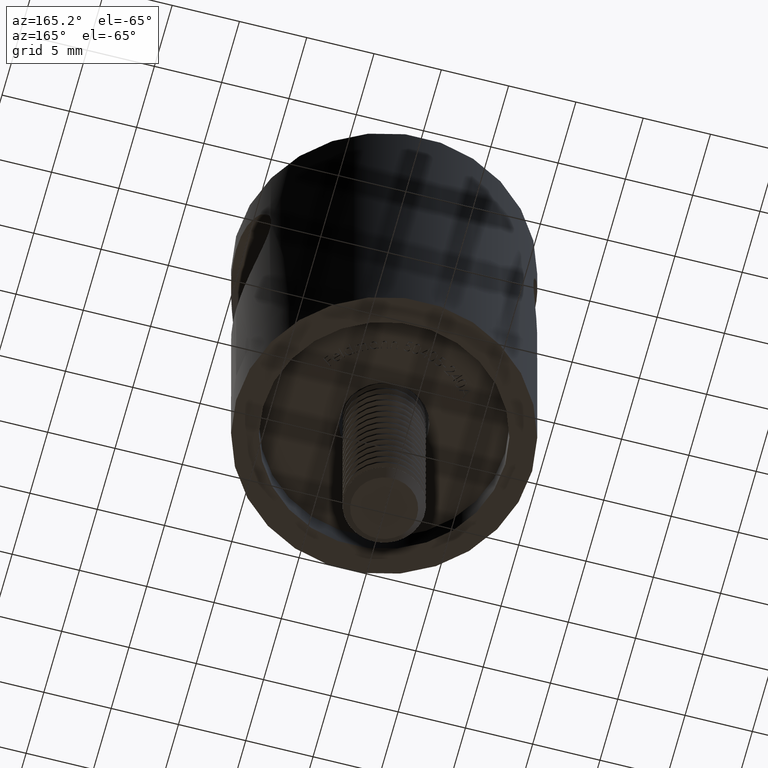
[diagram: clean part render]
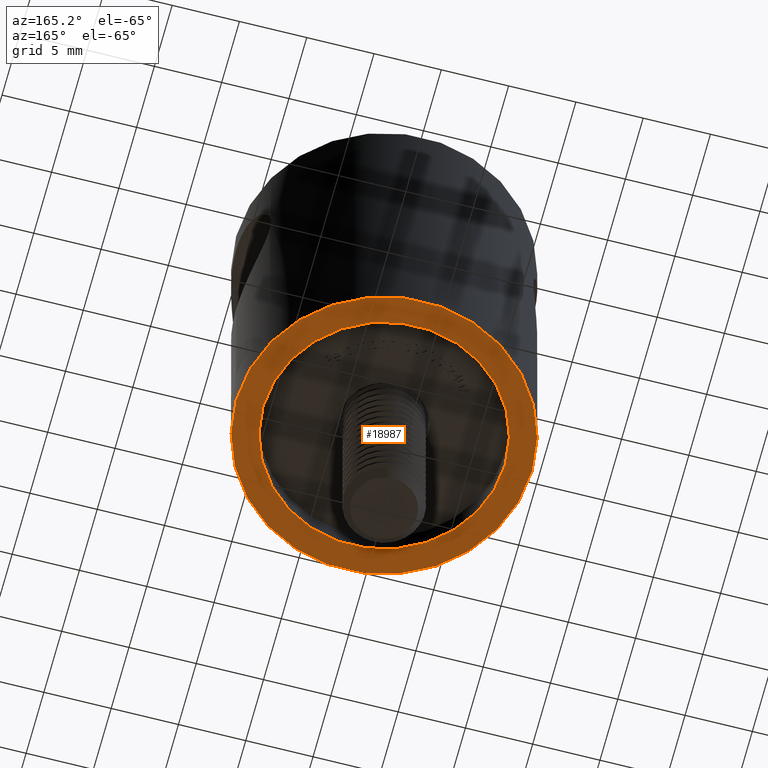
[diagram: same view with one face highlighted and labeled with its STEP entity id]
A machine part, auxiliary view. The second image highlights one B-rep face of the part: STEP entity #18987.
In plain terms, the highlighted planar face has unit normal (0, 0, -1).
Its self-contained STEP definition (entity closure, byte-faithful):
#985 = AXIS2_PLACEMENT_3D ( 'NONE', #4564, #11753, #18382 ) ;
#1219 = DIRECTION ( 'NONE',  ( -1.000000000000000000, 0.0000000000000000000, 0.0000000000000000000 ) ) ;
#1665 = DIRECTION ( 'NONE',  ( -0.0000000000000000000, -0.0000000000000000000, -1.000000000000000000 ) ) ;
#2111 = EDGE_CURVE ( 'NONE', #7971, #7971, #22202, .T. ) ;
#2850 = ORIENTED_EDGE ( 'NONE', *, *, #2111, .F. ) ;
#3454 = EDGE_LOOP ( 'NONE', ( #2850 ) ) ;
#4564 = CARTESIAN_POINT ( 'NONE',  ( 0.0000000000000000000, 11.00000000000000000, -4.099999999999999600 ) ) ;
#4852 = PLANE ( 'NONE',  #985 ) ;
#6549 = CIRCLE ( 'NONE', #13684, 11.00000000000000000 ) ;
#7042 = CARTESIAN_POINT ( 'NONE',  ( 0.0000000000000000000, 0.0000000000000000000, -4.099999999999999600 ) ) ;
#7971 = VERTEX_POINT ( 'NONE', #21384 ) ;
#8097 = DIRECTION ( 'NONE',  ( -0.0000000000000000000, -0.0000000000000000000, -1.000000000000000000 ) ) ;
#8261 = ORIENTED_EDGE ( 'NONE', *, *, #14689, .T. ) ;
#8539 = DIRECTION ( 'NONE',  ( -1.000000000000000000, 0.0000000000000000000, 0.0000000000000000000 ) ) ;
#11753 = DIRECTION ( 'NONE',  ( -0.0000000000000000000, 0.0000000000000000000, -1.000000000000000000 ) ) ;
#12129 = FACE_BOUND ( 'NONE', #3454, .T. ) ;
#12757 = EDGE_LOOP ( 'NONE', ( #8261 ) ) ;
#13684 = AXIS2_PLACEMENT_3D ( 'NONE', #7042, #1665, #8539 ) ;
#13712 = FACE_OUTER_BOUND ( 'NONE', #12757, .T. ) ;
#14153 = VERTEX_POINT ( 'NONE', #21541 ) ;
#14689 = EDGE_CURVE ( 'NONE', #14153, #14153, #6549, .T. ) ;
#15044 = CARTESIAN_POINT ( 'NONE',  ( 0.0000000000000000000, 0.0000000000000000000, -4.099999999999999600 ) ) ;
#18382 = DIRECTION ( 'NONE',  ( -1.000000000000000000, 0.0000000000000000000, 0.0000000000000000000 ) ) ;
#18987 = ADVANCED_FACE ( 'NONE', ( #13712, #12129 ), #4852, .T. ) ;
#19262 = AXIS2_PLACEMENT_3D ( 'NONE', #15044, #8097, #1219 ) ;
#21384 = CARTESIAN_POINT ( 'NONE',  ( -9.000000000000000000, 0.0000000000000000000, -4.099999999999999600 ) ) ;
#21541 = CARTESIAN_POINT ( 'NONE',  ( -11.00000000000000000, 0.0000000000000000000, -4.099999999999999600 ) ) ;
#22202 = CIRCLE ( 'NONE', #19262, 9.000000000000000000 ) ;